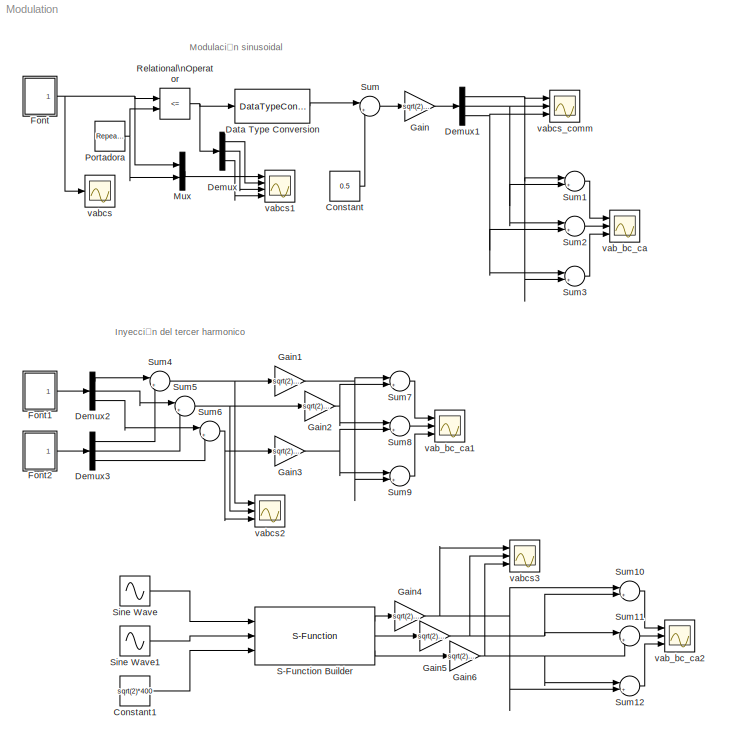
MODEL Modulation
KIND model
BLOCK [Constant] Constant
  SID = 1
  Value = 0.5
BLOCK [Constant] Constant1
  SID = 2
  Value = sqrt(2)*400
BLOCK [DataTypeConversion] Data Type Conversion
  OutDataTypeStr = double
  RndMeth = Floor
  SID = 3
  SaturateOnIntegerOverflow = off
BLOCK [Demux] Demux
  DisplayOption = bar
  Outputs = 3
  Ports = [1, 3]
  SID = 4
BLOCK [Demux] Demux1
  DisplayOption = bar
  Outputs = 3
  Ports = [1, 3]
  SID = 5
BLOCK [Demux] Demux2
  DisplayOption = bar
  Outputs = 3
  Ports = [1, 3]
  SID = 6
BLOCK [Demux] Demux3
  DisplayOption = bar
  Outputs = 3
  Ports = [1, 3]
  SID = 7
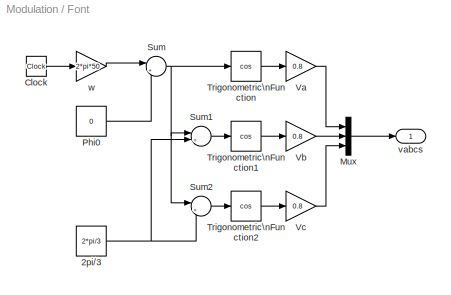
BLOCK [SubSystem] Font
  FunctionWithSeparateData = off
  MaskHideContents = off
  MinAlgLoopOccurrences = off
  Opaque = off
  Ports = [0, 1]
  PropExecContextOutsideSubsystem = off
  RTWSystemCode = Auto
  RequestExecContextInheritance = off
  SID = 8
BLOCK [Constant] Font/2pi//3
  SID = 9
  Value = 2*pi/3
BLOCK [Clock] Font/Clock
  SID = 10
BLOCK [Mux] Font/Mux
  DisplayOption = bar
  Inputs = 3
  Ports = [3, 1]
  SID = 11
BLOCK [Constant] Font/Phi0
  SID = 12
  Value = 0
BLOCK [Sum] Font/Sum
  IconShape = round
  InputSameDT = off
  Inputs = |++
  OutDataTypeStr = Inherit: Inherit via internal rule
  Ports = [2, 1]
  SID = 13
  SaturateOnIntegerOverflow = off
BLOCK [Sum] Font/Sum1
  IconShape = round
  InputSameDT = off
  Inputs = |+-
  OutDataTypeStr = Inherit: Inherit via internal rule
  Ports = [2, 1]
  SID = 14
  SaturateOnIntegerOverflow = off
BLOCK [Sum] Font/Sum2
  IconShape = round
  InputSameDT = off
  Inputs = |++
  OutDataTypeStr = Inherit: Inherit via internal rule
  Ports = [2, 1]
  SID = 15
  SaturateOnIntegerOverflow = off
BLOCK [Trigonometry] Font/Trigonometric\nFunction
  Operator = cos
  Ports = [1, 1]
  SID = 16
BLOCK [Trigonometry] Font/Trigonometric\nFunction1
  Operator = cos
  Ports = [1, 1]
  SID = 17
BLOCK [Trigonometry] Font/Trigonometric\nFunction2
  Operator = cos
  Ports = [1, 1]
  SID = 18
BLOCK [Gain] Font/Va
  Gain = 0.8
  OutDataTypeStr = Inherit: Inherit via internal rule
  ParamDataTypeStr = Inherit: Inherit via internal rule
  SID = 19
  SaturateOnIntegerOverflow = off
BLOCK [Gain] Font/Vb
  Gain = 0.8
  OutDataTypeStr = Inherit: Inherit via internal rule
  ParamDataTypeStr = Inherit: Inherit via internal rule
  SID = 20
  SaturateOnIntegerOverflow = off
BLOCK [Gain] Font/Vc
  Gain = 0.8
  OutDataTypeStr = Inherit: Inherit via internal rule
  ParamDataTypeStr = Inherit: Inherit via internal rule
  SID = 21
  SaturateOnIntegerOverflow = off
BLOCK [Outport] Font/vabcs
  IconDisplay = Port number
  SID = 23
BLOCK [Gain] Font/w
  Gain = 2*pi*50
  OutDataTypeStr = Inherit: Inherit via internal rule
  ParamDataTypeStr = Inherit: Inherit via internal rule
  SID = 22
  SaturateOnIntegerOverflow = off
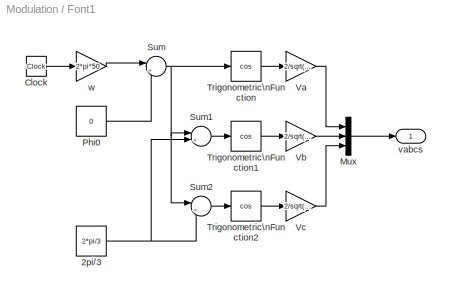
BLOCK [SubSystem] Font1
  FunctionWithSeparateData = off
  MaskHideContents = off
  MinAlgLoopOccurrences = off
  Opaque = off
  Ports = [0, 1]
  PropExecContextOutsideSubsystem = off
  RTWSystemCode = Auto
  RequestExecContextInheritance = off
  SID = 24
BLOCK [Constant] Font1/2pi//3
  SID = 25
  Value = 2*pi/3
BLOCK [Clock] Font1/Clock
  SID = 26
BLOCK [Mux] Font1/Mux
  DisplayOption = bar
  Inputs = 3
  Ports = [3, 1]
  SID = 27
BLOCK [Constant] Font1/Phi0
  SID = 28
  Value = 0
BLOCK [Sum] Font1/Sum
  IconShape = round
  InputSameDT = off
  Inputs = |++
  OutDataTypeStr = Inherit: Inherit via internal rule
  Ports = [2, 1]
  SID = 29
  SaturateOnIntegerOverflow = off
BLOCK [Sum] Font1/Sum1
  IconShape = round
  InputSameDT = off
  Inputs = |+-
  OutDataTypeStr = Inherit: Inherit via internal rule
  Ports = [2, 1]
  SID = 30
  SaturateOnIntegerOverflow = off
BLOCK [Sum] Font1/Sum2
  IconShape = round
  InputSameDT = off
  Inputs = |++
  OutDataTypeStr = Inherit: Inherit via internal rule
  Ports = [2, 1]
  SID = 31
  SaturateOnIntegerOverflow = off
BLOCK [Trigonometry] Font1/Trigonometric\nFunction
  Operator = cos
  Ports = [1, 1]
  SID = 32
BLOCK [Trigonometry] Font1/Trigonometric\nFunction1
  Operator = cos
  Ports = [1, 1]
  SID = 33
BLOCK [Trigonometry] Font1/Trigonometric\nFunction2
  Operator = cos
  Ports = [1, 1]
  SID = 34
BLOCK [Gain] Font1/Va
  Gain = 2/sqrt(3)
  OutDataTypeStr = Inherit: Inherit via internal rule
  ParamDataTypeStr = Inherit: Inherit via internal rule
  SID = 35
  SaturateOnIntegerOverflow = off
BLOCK [Gain] Font1/Vb
  Gain = 2/sqrt(3)
  OutDataTypeStr = Inherit: Inherit via internal rule
  ParamDataTypeStr = Inherit: Inherit via internal rule
  SID = 36
  SaturateOnIntegerOverflow = off
BLOCK [Gain] Font1/Vc
  Gain = 2/sqrt(3)
  OutDataTypeStr = Inherit: Inherit via internal rule
  ParamDataTypeStr = Inherit: Inherit via internal rule
  SID = 37
  SaturateOnIntegerOverflow = off
BLOCK [Outport] Font1/vabcs
  IconDisplay = Port number
  SID = 39
BLOCK [Gain] Font1/w
  Gain = 2*pi*50
  OutDataTypeStr = Inherit: Inherit via internal rule
  ParamDataTypeStr = Inherit: Inherit via internal rule
  SID = 38
  SaturateOnIntegerOverflow = off
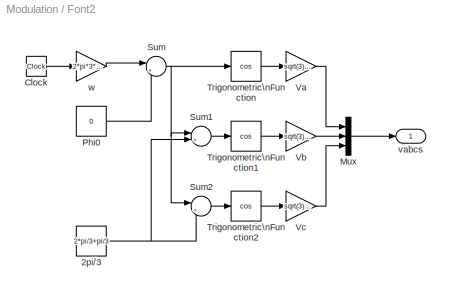
BLOCK [SubSystem] Font2
  FunctionWithSeparateData = off
  MaskHideContents = off
  MinAlgLoopOccurrences = off
  Opaque = off
  Ports = [0, 1]
  PropExecContextOutsideSubsystem = off
  RTWSystemCode = Auto
  RequestExecContextInheritance = off
  SID = 40
BLOCK [Constant] Font2/2pi//3
  SID = 41
  Value = 2*pi/3+pi/3
BLOCK [Clock] Font2/Clock
  SID = 42
BLOCK [Mux] Font2/Mux
  DisplayOption = bar
  Inputs = 3
  Ports = [3, 1]
  SID = 43
BLOCK [Constant] Font2/Phi0
  SID = 44
  Value = 0
BLOCK [Sum] Font2/Sum
  IconShape = round
  InputSameDT = off
  Inputs = |++
  OutDataTypeStr = Inherit: Inherit via internal rule
  Ports = [2, 1]
  SID = 45
  SaturateOnIntegerOverflow = off
BLOCK [Sum] Font2/Sum1
  IconShape = round
  InputSameDT = off
  Inputs = |+-
  OutDataTypeStr = Inherit: Inherit via internal rule
  Ports = [2, 1]
  SID = 46
  SaturateOnIntegerOverflow = off
BLOCK [Sum] Font2/Sum2
  IconShape = round
  InputSameDT = off
  Inputs = |++
  OutDataTypeStr = Inherit: Inherit via internal rule
  Ports = [2, 1]
  SID = 47
  SaturateOnIntegerOverflow = off
BLOCK [Trigonometry] Font2/Trigonometric\nFunction
  Operator = cos
  Ports = [1, 1]
  SID = 48
BLOCK [Trigonometry] Font2/Trigonometric\nFunction1
  Operator = cos
  Ports = [1, 1]
  SID = 49
BLOCK [Trigonometry] Font2/Trigonometric\nFunction2
  Operator = cos
  Ports = [1, 1]
  SID = 50
BLOCK [Gain] Font2/Va
  Gain = sqrt(3)/9
  OutDataTypeStr = Inherit: Inherit via internal rule
  ParamDataTypeStr = Inherit: Inherit via internal rule
  SID = 51
  SaturateOnIntegerOverflow = off
BLOCK [Gain] Font2/Vb
  Gain = sqrt(3)/9
  OutDataTypeStr = Inherit: Inherit via internal rule
  ParamDataTypeStr = Inherit: Inherit via internal rule
  SID = 52
  SaturateOnIntegerOverflow = off
BLOCK [Gain] Font2/Vc
  Gain = sqrt(3)/9
  OutDataTypeStr = Inherit: Inherit via internal rule
  ParamDataTypeStr = Inherit: Inherit via internal rule
  SID = 53
  SaturateOnIntegerOverflow = off
BLOCK [Outport] Font2/vabcs
  IconDisplay = Port number
  SID = 55
BLOCK [Gain] Font2/w
  Gain = 2*pi*3*50
  OutDataTypeStr = Inherit: Inherit via internal rule
  ParamDataTypeStr = Inherit: Inherit via internal rule
  SID = 54
  SaturateOnIntegerOverflow = off
BLOCK [Gain] Gain
  Gain = sqrt(2)*400/2
  OutDataTypeStr = Inherit: Inherit via internal rule
  ParamDataTypeStr = Inherit: Inherit via internal rule
  SID = 56
  SaturateOnIntegerOverflow = off
BLOCK [Gain] Gain1
  Gain = sqrt(2)*400/2
  OutDataTypeStr = Inherit: Inherit via internal rule
  ParamDataTypeStr = Inherit: Inherit via internal rule
  SID = 57
  SaturateOnIntegerOverflow = off
BLOCK [Gain] Gain2
  Gain = sqrt(2)*400/2
  OutDataTypeStr = Inherit: Inherit via internal rule
  ParamDataTypeStr = Inherit: Inherit via internal rule
  SID = 58
  SaturateOnIntegerOverflow = off
BLOCK [Gain] Gain3
  Gain = sqrt(2)*400/2
  OutDataTypeStr = Inherit: Inherit via internal rule
  ParamDataTypeStr = Inherit: Inherit via internal rule
  SID = 59
  SaturateOnIntegerOverflow = off
BLOCK [Gain] Gain4
  Gain = sqrt(2)*400
  OutDataTypeStr = Inherit: Inherit via internal rule
  ParamDataTypeStr = Inherit: Inherit via internal rule
  SID = 60
  SaturateOnIntegerOverflow = off
BLOCK [Gain] Gain5
  Gain = sqrt(2)*400
  OutDataTypeStr = Inherit: Inherit via internal rule
  ParamDataTypeStr = Inherit: Inherit via internal rule
  SID = 61
  SaturateOnIntegerOverflow = off
BLOCK [Gain] Gain6
  Gain = sqrt(2)*400
  OutDataTypeStr = Inherit: Inherit via internal rule
  ParamDataTypeStr = Inherit: Inherit via internal rule
  SID = 62
  SaturateOnIntegerOverflow = off
BLOCK [Mux] Mux
  DisplayOption = bar
  Inputs = 2
  Ports = [2, 1]
  SID = 63
BLOCK [Reference] Portadora  REF=simulink/Sources/Repeating\nSequence
  Ports = [0, 1]
  SID = 64
  SourceBlock = simulink/Sources/Repeating\nSequence
  SourceType = Repeating table
  rep_seq_t = [0 0.5e-3 1e-3]
  rep_seq_y = [-1 1 -1]
BLOCK [RelationalOperator] Relational\nOperator
  InputSameDT = off
  Operator = <=
  OutDataTypeStr = boolean
  Ports = [2, 1]
  SID = 65
BLOCK [S-Function] S-Function Builder
  CopyFcn = set_param(gcbh,'LinkStatus','none')
  EnableBusSupport = off
  FunctionName = SVPWM
  InitFcn = try, set_param(gcb,'FunctionName','SVPWM'), end
  MaskDisplay = plot(val(:,1),val(:,2)),disp(sys), port_label('input',1,'vsD'), port_label('input',2,'vsQ'), port_label('input',3,'VDC'), port_label('output',1,'duty_a'), port_label('output',2,'duty_b'), port_label('output',3,'duty_c')
  MaskIconFrame = on
  MaskIconOpaque = on
  MaskIconRotate = none
  MaskIconUnits = normalized
  MaskInitialization = val = [[.9  0.75 0.75 1 1 .9 .9 1]',[1 1 0.75 0.75 .9 .9 1 .9]'];try , sys = get_param(gcb,'SfunBuilderFcnName');if isempty(sys), sys = get_param(gcb,'FunctionName'); end,catch, sys = get_param(gcb,'FunctionName'); end
  MaskPortRotate = default
  MaskType = S-Function Builder
  OpenFcn = sfunctionwizard(gcbh)
  Ports = [3, 3]
  PreSaveFcn = try, set_param(gcb,'FunctionName','SVPWM'), end
  SFunctionModules = SVPWM_wrapper sign
  SID = 66
  WizardData = DataTag0
BLOCK [Sin] Sine Wave
  Amplitude = sqrt(2)*230
  Frequency = 2*pi*50
  Phase = pi/2
  Ports = [0, 1]
  SID = 67
  SampleTime = 0
BLOCK [Sin] Sine Wave1
  Amplitude = sqrt(2)*230
  Frequency = 2*pi*50
  Ports = [0, 1]
  SID = 68
  SampleTime = 0
BLOCK [Sum] Sum
  IconShape = round
  InputSameDT = off
  Inputs = |+-
  OutDataTypeStr = Inherit: Inherit via internal rule
  Ports = [2, 1]
  SID = 69
  SaturateOnIntegerOverflow = off
BLOCK [Sum] Sum1
  IconShape = round
  InputSameDT = off
  Inputs = |+-
  OutDataTypeStr = Inherit: Inherit via internal rule
  Ports = [2, 1]
  SID = 70
  SaturateOnIntegerOverflow = off
BLOCK [Sum] Sum10
  IconShape = round
  InputSameDT = off
  Inputs = |+-
  OutDataTypeStr = Inherit: Inherit via internal rule
  Ports = [2, 1]
  SID = 71
  SaturateOnIntegerOverflow = off
BLOCK [Sum] Sum11
  IconShape = round
  InputSameDT = off
  Inputs = |+-
  OutDataTypeStr = Inherit: Inherit via internal rule
  Ports = [2, 1]
  SID = 72
  SaturateOnIntegerOverflow = off
BLOCK [Sum] Sum12
  IconShape = round
  InputSameDT = off
  Inputs = |+-
  OutDataTypeStr = Inherit: Inherit via internal rule
  Ports = [2, 1]
  SID = 73
  SaturateOnIntegerOverflow = off
BLOCK [Sum] Sum2
  IconShape = round
  InputSameDT = off
  Inputs = |+-
  OutDataTypeStr = Inherit: Inherit via internal rule
  Ports = [2, 1]
  SID = 74
  SaturateOnIntegerOverflow = off
BLOCK [Sum] Sum3
  IconShape = round
  InputSameDT = off
  Inputs = |+-
  OutDataTypeStr = Inherit: Inherit via internal rule
  Ports = [2, 1]
  SID = 75
  SaturateOnIntegerOverflow = off
BLOCK [Sum] Sum4
  IconShape = round
  InputSameDT = off
  Inputs = |+-
  OutDataTypeStr = Inherit: Inherit via internal rule
  Ports = [2, 1]
  SID = 76
  SaturateOnIntegerOverflow = off
BLOCK [Sum] Sum5
  IconShape = round
  InputSameDT = off
  Inputs = |++
  OutDataTypeStr = Inherit: Inherit via internal rule
  Ports = [2, 1]
  SID = 77
  SaturateOnIntegerOverflow = off
BLOCK [Sum] Sum6
  IconShape = round
  InputSameDT = off
  Inputs = |++
  OutDataTypeStr = Inherit: Inherit via internal rule
  Ports = [2, 1]
  SID = 78
  SaturateOnIntegerOverflow = off
BLOCK [Sum] Sum7
  IconShape = round
  InputSameDT = off
  Inputs = |+-
  OutDataTypeStr = Inherit: Inherit via internal rule
  Ports = [2, 1]
  SID = 79
  SaturateOnIntegerOverflow = off
BLOCK [Sum] Sum8
  IconShape = round
  InputSameDT = off
  Inputs = |+-
  OutDataTypeStr = Inherit: Inherit via internal rule
  Ports = [2, 1]
  SID = 80
  SaturateOnIntegerOverflow = off
BLOCK [Sum] Sum9
  IconShape = round
  InputSameDT = off
  Inputs = |+-
  OutDataTypeStr = Inherit: Inherit via internal rule
  Ports = [2, 1]
  SID = 81
  SaturateOnIntegerOverflow = off
BLOCK [Scope] vab_bc_ca
  DataFormat = StructureWithTime
  Floating = off
  LimitDataPoints = off
  NumInputPorts = 3
  Ports = [3]
  SID = 82
  SampleTime = 0
  SaveName = ScopeData2
  YMax = 300~300~300
  YMin = -300~-300~-300
BLOCK [Scope] vab_bc_ca1
  DataFormat = StructureWithTime
  Floating = off
  LimitDataPoints = off
  NumInputPorts = 3
  Ports = [3]
  SID = 83
  SampleTime = 0
  SaveName = ScopeData4
  YMax = 750~750~750
  YMin = -750~-750~-750
BLOCK [Scope] vab_bc_ca2
  DataFormat = StructureWithTime
  Floating = off
  LimitDataPoints = off
  NumInputPorts = 3
  Ports = [3]
  SID = 84
  SampleTime = 0
  SaveName = ScopeData6
  YMax = 750~750~750
  YMin = -750~-750~-750
BLOCK [Scope] vabcs
  DataFormat = StructureWithTime
  Floating = off
  LimitDataPoints = off
  NumInputPorts = 1
  Ports = [1]
  SID = 85
  SampleTime = 0
BLOCK [Scope] vabcs1
  DataFormat = StructureWithTime
  Floating = off
  LimitDataPoints = off
  NumInputPorts = 4
  Ports = [4]
  SID = 86
  SampleTime = 0
  SaveName = PWM
  SaveToWorkspace = on
  YMax = 5~5~5~5
  YMin = -5~-5~-5~-5
  ZoomMode = yonly
BLOCK [Scope] vabcs2
  DataFormat = StructureWithTime
  Floating = off
  LimitDataPoints = off
  NumInputPorts = 3
  Ports = [3]
  SID = 87
  SampleTime = 0
  SaveName = ScopeData3
  YMax = 1.5~1.25~1.25
  YMin = -1.5~-1.25~-1.25
  ZoomMode = xonly
BLOCK [Scope] vabcs3
  DataFormat = StructureWithTime
  Floating = off
  LimitDataPoints = off
  NumInputPorts = 3
  Ports = [3]
  SID = 88
  SampleTime = 0
  SaveName = ScopeData5
  YMax = 300~300~300
  YMin = -300~-300~-300
  ZoomMode = xonly
BLOCK [Scope] vabcs_comm
  DataFormat = StructureWithTime
  Floating = off
  LimitDataPoints = off
  NumInputPorts = 3
  Ports = [3]
  SID = 89
  SampleTime = 0
  SaveName = ScopeData1
  YMax = 5~5~5
  YMin = -5~-5~-5
ANNOTATION (root): Inyección del tercer harmonico
ANNOTATION (root): Modulación sinusoidal
LINE Constant1:1 -> S-Function Builder:3
LINE Constant:1 -> Sum:2
LINE Data Type Conversion:1 -> Sum:1
NET Demux1:1 -> Sum1:1, Sum3:2, vabcs_comm:1
NET Demux1:2 -> Sum1:2, Sum2:1, vabcs_comm:2
NET Demux1:3 -> Sum2:2, Sum3:1, vabcs_comm:3
LINE Demux2:1 -> Sum4:1
LINE Demux2:2 -> Sum5:1
LINE Demux2:3 -> Sum6:1
LINE Demux3:1 -> Sum4:2
LINE Demux3:2 -> Sum5:2
LINE Demux3:3 -> Sum6:2
LINE Demux:1 -> vabcs1:2
LINE Demux:2 -> vabcs1:3
LINE Demux:3 -> vabcs1:4
NET Font/2pi//3:1 -> Font/Sum1:2, Font/Sum2:2
LINE Font/Clock:1 -> Font/w:1
LINE Font/Mux:1 -> Font/vabcs:1
LINE Font/Phi0:1 -> Font/Sum:2
LINE Font/Sum1:1 -> Font/Trigonometric\nFunction1:1
LINE Font/Sum2:1 -> Font/Trigonometric\nFunction2:1
NET Font/Sum:1 -> Font/Sum1:1, Font/Sum2:1, Font/Trigonometric\nFunction:1
LINE Font/Trigonometric\nFunction1:1 -> Font/Vb:1
LINE Font/Trigonometric\nFunction2:1 -> Font/Vc:1
LINE Font/Trigonometric\nFunction:1 -> Font/Va:1
LINE Font/Va:1 -> Font/Mux:1
LINE Font/Vb:1 -> Font/Mux:2
LINE Font/Vc:1 -> Font/Mux:3
LINE Font/w:1 -> Font/Sum:1
NET Font1/2pi//3:1 -> Font1/Sum1:2, Font1/Sum2:2
LINE Font1/Clock:1 -> Font1/w:1
LINE Font1/Mux:1 -> Font1/vabcs:1
LINE Font1/Phi0:1 -> Font1/Sum:2
LINE Font1/Sum1:1 -> Font1/Trigonometric\nFunction1:1
LINE Font1/Sum2:1 -> Font1/Trigonometric\nFunction2:1
NET Font1/Sum:1 -> Font1/Sum1:1, Font1/Sum2:1, Font1/Trigonometric\nFunction:1
LINE Font1/Trigonometric\nFunction1:1 -> Font1/Vb:1
LINE Font1/Trigonometric\nFunction2:1 -> Font1/Vc:1
LINE Font1/Trigonometric\nFunction:1 -> Font1/Va:1
LINE Font1/Va:1 -> Font1/Mux:1
LINE Font1/Vb:1 -> Font1/Mux:2
LINE Font1/Vc:1 -> Font1/Mux:3
LINE Font1/w:1 -> Font1/Sum:1
LINE Font1:1 -> Demux2:1
NET Font2/2pi//3:1 -> Font2/Sum1:2, Font2/Sum2:2
LINE Font2/Clock:1 -> Font2/w:1
LINE Font2/Mux:1 -> Font2/vabcs:1
LINE Font2/Phi0:1 -> Font2/Sum:2
LINE Font2/Sum1:1 -> Font2/Trigonometric\nFunction1:1
LINE Font2/Sum2:1 -> Font2/Trigonometric\nFunction2:1
NET Font2/Sum:1 -> Font2/Sum1:1, Font2/Sum2:1, Font2/Trigonometric\nFunction:1
LINE Font2/Trigonometric\nFunction1:1 -> Font2/Vb:1
LINE Font2/Trigonometric\nFunction2:1 -> Font2/Vc:1
LINE Font2/Trigonometric\nFunction:1 -> Font2/Va:1
LINE Font2/Va:1 -> Font2/Mux:1
LINE Font2/Vb:1 -> Font2/Mux:2
LINE Font2/Vc:1 -> Font2/Mux:3
LINE Font2/w:1 -> Font2/Sum:1
LINE Font2:1 -> Demux3:1
NET Font:1 -> Mux:1, Relational\nOperator:1, vabcs:1
NET Gain1:1 -> Sum7:1, Sum9:2
NET Gain2:1 -> Sum7:2, Sum8:1
NET Gain3:1 -> Sum8:2, Sum9:1
NET Gain4:1 -> Sum10:1, Sum12:2, vabcs3:1
NET Gain5:1 -> Sum10:2, Sum11:1, vabcs3:2
NET Gain6:1 -> Sum11:2, Sum12:1, vabcs3:3
LINE Gain:1 -> Demux1:1
LINE Mux:1 -> vabcs1:1
NET Portadora:1 -> Mux:2, Relational\nOperator:2
NET Relational\nOperator:1 -> Data Type Conversion:1, Demux:1
LINE S-Function Builder:1 -> Gain4:1
LINE S-Function Builder:2 -> Gain5:1
LINE S-Function Builder:3 -> Gain6:1
LINE Sine Wave1:1 -> S-Function Builder:2
LINE Sine Wave:1 -> S-Function Builder:1
LINE Sum10:1 -> vab_bc_ca2:1
LINE Sum11:1 -> vab_bc_ca2:2
LINE Sum12:1 -> vab_bc_ca2:3
LINE Sum1:1 -> vab_bc_ca:1
LINE Sum2:1 -> vab_bc_ca:2
LINE Sum3:1 -> vab_bc_ca:3
NET Sum4:1 -> Gain1:1, vabcs2:1
NET Sum5:1 -> Gain2:1, vabcs2:2
NET Sum6:1 -> Gain3:1, vabcs2:3
LINE Sum7:1 -> vab_bc_ca1:1
LINE Sum8:1 -> vab_bc_ca1:2
LINE Sum9:1 -> vab_bc_ca1:3
LINE Sum:1 -> Gain:1
note: NET lines group one-source signal fan-out (src -> all destinations, sorted); 1:1 wires keep LINE
